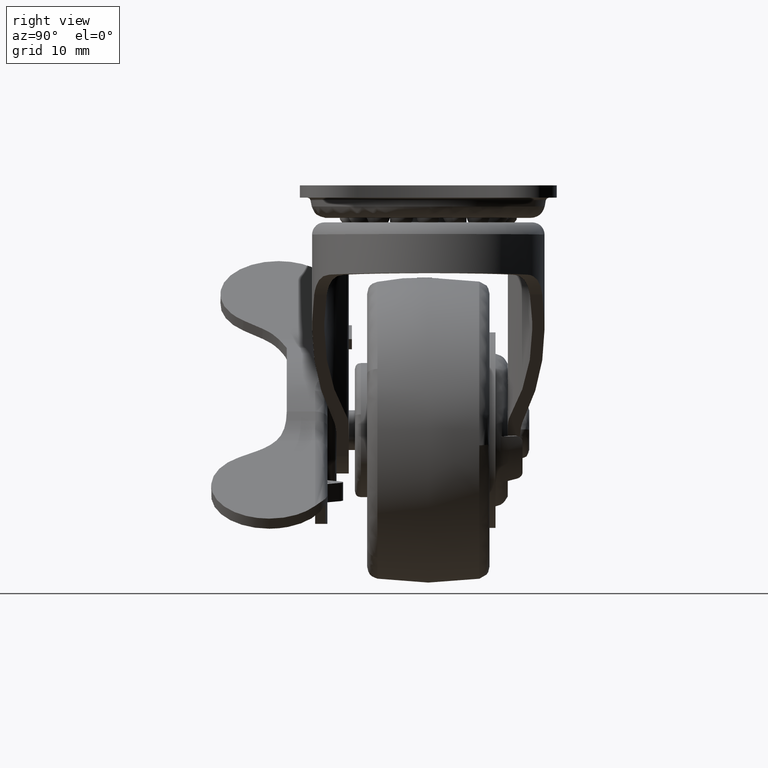
[diagram: clean part render]
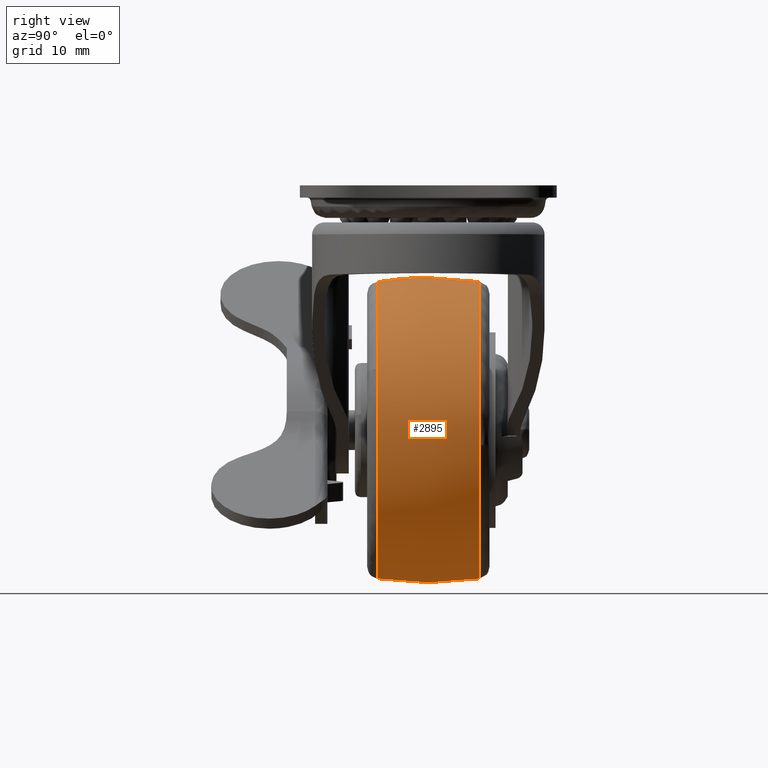
[diagram: same view with one face highlighted and labeled with its STEP entity id]
A machine part, right view. The second image highlights one B-rep face of the part: STEP entity #2895.
In plain terms, the highlighted face is a freeform B-spline surface patch.
Its self-contained STEP definition (entity closure, byte-faithful):
#2372=CARTESIAN_POINT('',(6.694257919901358,-8.333334659224246,-23.360420628443421));
#2373=VERTEX_POINT('',#2372);
#2384=CARTESIAN_POINT('',(23.977126034137669,-8.333324548178545,3.952191505943502));
#2385=VERTEX_POINT('',#2384);
#2386=CARTESIAN_POINT('',(6.694257919901358,-8.333334659224246,-23.360420628443421));
#2387=CARTESIAN_POINT('',(8.376217144736090,-8.333334483497174,-22.878751980764619));
#2388=CARTESIAN_POINT('',(11.120519588692920,-8.333334072963551,-21.759467930160401));
#2389=CARTESIAN_POINT('',(14.737640063729691,-8.333333220684587,-19.446317190296831));
#2390=CARTESIAN_POINT('',(17.503258220461628,-8.333332315399517,-16.994745120999308));
#2391=CARTESIAN_POINT('',(19.830114738894491,-8.333331277102023,-14.187238202741890));
#2392=CARTESIAN_POINT('',(21.494653034936679,-8.333330271836182,-11.472020607011190));
#2393=CARTESIAN_POINT('',(22.806190744530522,-8.333329197828277,-8.573490779741791));
#2394=CARTESIAN_POINT('',(23.787942865615769,-8.333328020530162,-5.398506018519986));
#2395=CARTESIAN_POINT('',(24.433641128548871,-8.333326427276740,-1.105208132619276));
#2396=CARTESIAN_POINT('',(24.284519931068768,-8.333325240460852,2.089688546944770));
#2397=CARTESIAN_POINT('',(23.977126034137669,-8.333324548178545,3.952191505943502));
#2398=B_SPLINE_CURVE_WITH_KNOTS('',3,(#2386,#2387,#2388,#2389,#2390,#2391,#2392,#2393,#2394,#2395,#2396,#2397),.UNSPECIFIED.,.F.,.U.,(4,1,1,1,1,1,1,1,1,4),(0.000000064456650,5.248627621696471,8.839828561252695,12.845377479156690,16.298443835512629,19.751485523214651,22.375793984493399,25.828872734242921,29.696317226690120,35.359313656390569),.UNSPECIFIED.);
#2399=EDGE_CURVE('',#2373,#2385,#2398,.T.);
#2513=CARTESIAN_POINT('',(0.0,-8.333316665074666,24.300667676607080));
#2514=VERTEX_POINT('',#2513);
#2515=CARTESIAN_POINT('',(23.977126034137669,-8.333324548178545,3.952191505943502));
#2516=CARTESIAN_POINT('',(23.658948622004800,-8.333323811748263,5.885706298156643));
#2517=CARTESIAN_POINT('',(22.739539306916321,-8.333322612071482,9.028685014151060));
#2518=CARTESIAN_POINT('',(20.635940245687781,-8.333321082352422,13.020536471936490));
#2519=CARTESIAN_POINT('',(18.657608056951471,-8.333320063939183,15.668320741268859));
#2520=CARTESIAN_POINT('',(16.619058749751840,-8.333319244915092,17.790122981248739));
#2521=CARTESIAN_POINT('',(14.471428599244399,-8.333318542649764,19.602667286641029));
#2522=CARTESIAN_POINT('',(11.998277237312770,-8.333317918630506,21.203681942954908));
#2523=CARTESIAN_POINT('',(9.107846413844319,-8.333317368594463,22.602834971764661));
#2524=CARTESIAN_POINT('',(5.210173469318502,-8.333316850179189,23.901656800484780));
#2525=CARTESIAN_POINT('',(2.004056777354083,-8.333316677768396,24.301226920424430));
#2526=CARTESIAN_POINT('',(0.0,-8.333316665074666,24.300667676607080));
#2527=B_SPLINE_CURVE_WITH_KNOTS('',3,(#2515,#2516,#2517,#2518,#2519,#2520,#2521,#2522,#2523,#2524,#2525,#2526),.UNSPECIFIED.,.F.,.U.,(4,1,1,1,1,1,1,1,1,4),(0.000000058399166,5.878396454092627,9.752810146939900,13.493612663535190,15.764815979274180,18.570369609744031,21.910406002991181,24.582405766219779,28.189619677754880,34.201616375629627),.UNSPECIFIED.);
#2528=EDGE_CURVE('',#2385,#2514,#2527,.T.);
#2530=CARTESIAN_POINT('',(-24.138137160452619,-8.333331455629740,2.805826517292569));
#2531=VERTEX_POINT('',#2530);
#2548=CARTESIAN_POINT('',(0.0,-8.333334859047270,-24.300664601270750));
#2549=VERTEX_POINT('',#2548);
#2550=CARTESIAN_POINT('',(-24.138137160452619,-8.333331455629740,2.805826517292569));
#2551=CARTESIAN_POINT('',(-24.304652242716969,-8.333331545467127,1.374654246760641));
#2552=CARTESIAN_POINT('',(-24.367515914245541,-8.333331706562914,-0.981798275595051));
#2553=CARTESIAN_POINT('',(-23.976901402703689,-8.333331961356805,-4.272454986089161));
#2554=CARTESIAN_POINT('',(-23.358570410731200,-8.333332182013971,-6.872854816449393));
#2555=CARTESIAN_POINT('',(-22.390606562498359,-8.333332432706653,-9.590819500198627));
#2556=CARTESIAN_POINT('',(-21.225266626433161,-8.333332669784632,-11.938603072443380));
#2557=CARTESIAN_POINT('',(-19.720058524547468,-8.333332927106191,-14.272818360847600));
#2558=CARTESIAN_POINT('',(-17.682939338767259,-8.333333232452993,-16.819175021988169));
#2559=CARTESIAN_POINT('',(-14.984821473058540,-8.333333572475297,-19.272099254169660));
#2560=CARTESIAN_POINT('',(-11.974148222275311,-8.333333896278196,-21.215058646687758));
#2561=CARTESIAN_POINT('',(-9.088326413655013,-8.333334174172784,-22.613647246054420));
#2562=CARTESIAN_POINT('',(-5.176088532827952,-8.333334508787392,-23.908159757879972));
#2563=CARTESIAN_POINT('',(-1.974515688205885,-8.333334735955877,-24.301201347102580));
#2564=CARTESIAN_POINT('',(0.0,-8.333334859047270,-24.300664601270750));
#2565=B_SPLINE_CURVE_WITH_KNOTS('',3,(#2550,#2551,#2552,#2553,#2554,#2555,#2556,#2557,#2558,#2559,#2560,#2561,#2562,#2563,#2564),.UNSPECIFIED.,.F.,.U.,(4,1,1,1,1,1,1,1,1,1,1,1,4),(0.000000081090988,4.322451191316318,7.044039719624024,9.925706763834995,12.327100541006310,15.689027820653420,17.770226535654150,20.651830765813891,25.454608214749179,28.656472640276760,31.378046718546081,35.060177183453987,40.983567741001082),.UNSPECIFIED.);
#2566=EDGE_CURVE('',#2531,#2549,#2565,.T.);
#2568=CARTESIAN_POINT('',(0.0,-8.333334859047270,-24.300664601270750));
#2569=CARTESIAN_POINT('',(2.260720899362077,-8.333334859167374,-24.301229760847079));
#2570=CARTESIAN_POINT('',(4.521147968865813,-8.333334791669897,-23.983628206997231));
#2571=CARTESIAN_POINT('',(6.694257919901358,-8.333334659224246,-23.360420628443421));
#2572=B_SPLINE_CURVE_WITH_KNOTS('',3,(#2568,#2569,#2570,#2571),.UNSPECIFIED.,.F.,.U.,(4,4),(1.555310E-009,6.781976443349644),.UNSPECIFIED.);
#2573=EDGE_CURVE('',#2549,#2373,#2572,.T.);
#2608=CARTESIAN_POINT('',(22.709083047449781,8.333331445738839,-8.649852680571042));
#2609=VERTEX_POINT('',#2608);
#2610=CARTESIAN_POINT('',(0.0,8.333327410047160,24.300666727982382));
#2611=VERTEX_POINT('',#2610);
#2612=CARTESIAN_POINT('',(22.709083047449781,8.333331445738839,-8.649852680571042));
#2613=CARTESIAN_POINT('',(23.166767476545299,8.333331297689790,-7.448521945584016));
#2614=CARTESIAN_POINT('',(23.856257258652821,8.333331007285842,-5.090861856597387));
#2615=CARTESIAN_POINT('',(24.346218455043928,8.333330558133945,-1.441068381170188));
#2616=CARTESIAN_POINT('',(24.292365024274869,8.333330082608196,2.426346638715271));
#2617=CARTESIAN_POINT('',(23.598202293446239,8.333329614613435,6.236215563639821));
#2618=CARTESIAN_POINT('',(22.216422753305530,8.333329139331127,10.109323560871671));
#2619=CARTESIAN_POINT('',(20.312456550697782,8.333328717352883,13.551957230619131));
#2620=CARTESIAN_POINT('',(18.124373226028862,8.333328382936003,16.284171981422610));
#2621=CARTESIAN_POINT('',(15.926502095575399,8.333328121979234,18.419036475266100));
#2622=CARTESIAN_POINT('',(13.893145201810141,8.333327928859291,20.001290349263549));
#2623=CARTESIAN_POINT('',(10.911023607452551,8.333327707165815,21.821383955732781));
#2624=CARTESIAN_POINT('',(7.675942484895749,8.333327542790071,23.176823924347570));
#2625=CARTESIAN_POINT('',(3.734229143517279,8.333327431869277,24.101630150026580));
#2626=CARTESIAN_POINT('',(1.346794604313989,8.333327409077038,24.300775630016371));
#2627=CARTESIAN_POINT('',(0.0,8.333327410047160,24.300666727982382));
#2628=B_SPLINE_CURVE_WITH_KNOTS('',3,(#2612,#2613,#2614,#2615,#2616,#2617,#2618,#2619,#2620,#2621,#2622,#2623,#2624,#2625,#2626,#2627),.UNSPECIFIED.,.F.,.U.,(4,1,1,1,1,1,1,1,1,1,1,1,1,4),(0.000000086616488,3.856679224792657,7.346114597893426,11.019208907203900,15.426907793644320,18.916339032872159,23.324031047617730,27.180695308514348,29.384527550282652,32.506666746104599,34.894164003331262,39.852835493748749,42.974919464386630,47.015294931142947),.UNSPECIFIED.);
#2629=EDGE_CURVE('',#2609,#2611,#2628,.T.);
#2736=CARTESIAN_POINT('',(0.0,8.333333321451740,-24.300666596374899));
#2737=VERTEX_POINT('',#2736);
#2738=CARTESIAN_POINT('',(0.0,8.333333321451740,-24.300666596374899));
#2739=CARTESIAN_POINT('',(1.374734509128933,8.333333321466117,-24.300786539576048));
#2740=CARTESIAN_POINT('',(3.818660523271896,8.333333296527096,-24.092697182327449));
#2741=CARTESIAN_POINT('',(7.093317241161781,8.333333202265481,-23.306185075007889));
#2742=CARTESIAN_POINT('',(10.102162705875481,8.333333067240414,-22.179545294737469));
#2743=CARTESIAN_POINT('',(12.872469585474770,8.333332890024403,-20.700867953826990));
#2744=CARTESIAN_POINT('',(15.660823239678271,8.333332647902852,-18.680622826045749));
#2745=CARTESIAN_POINT('',(17.707634374922769,8.333332413007057,-16.720669340615821));
#2746=CARTESIAN_POINT('',(19.662889829002900,8.333332131348357,-14.370529231259599));
#2747=CARTESIAN_POINT('',(21.301835977134029,8.333331832055931,-11.873254898908460));
#2748=CARTESIAN_POINT('',(22.301344683104301,8.333331574046694,-9.720444171492108));
#2749=CARTESIAN_POINT('',(22.709083047449781,8.333331445738839,-8.649852680571042));
#2750=B_SPLINE_CURVE_WITH_KNOTS('',3,(#2738,#2739,#2740,#2741,#2742,#2743,#2744,#2745,#2746,#2747,#2748,#2749),.UNSPECIFIED.,.F.,.U.,(4,1,1,1,1,1,1,1,1,4),(5.179960E-009,4.124194755286165,7.331930592903042,10.081414085375091,13.747369880896700,16.725959438529500,20.391922734681010,22.224915285020518,25.890890410493700,29.327721459707050),.UNSPECIFIED.);
#2751=EDGE_CURVE('',#2737,#2609,#2750,.T.);
#2753=CARTESIAN_POINT('',(-24.138136264636419,8.333341831794670,2.805826547892443));
#2754=VERTEX_POINT('',#2753);
#2755=CARTESIAN_POINT('',(-24.138136264636419,8.333341831794670,2.805826547892443));
#2756=CARTESIAN_POINT('',(-24.329400427810430,8.333341573885321,1.162624389624436));
#2757=CARTESIAN_POINT('',(-24.365474304884820,8.333341109903167,-1.519233661189011));
#2758=CARTESIAN_POINT('',(-23.858376831591009,8.333340447707776,-4.849368701195713));
#2759=CARTESIAN_POINT('',(-23.113134584728140,8.333339833918441,-7.690997397249443));
#2760=CARTESIAN_POINT('',(-22.034809737150201,8.333339186195103,-10.429810641661030));
#2761=CARTESIAN_POINT('',(-20.249012763444391,8.333338353160672,-13.596909530545689));
#2762=CARTESIAN_POINT('',(-18.241622530576141,8.333337588784724,-16.174583351005250));
#2763=CARTESIAN_POINT('',(-15.558209037187870,8.333336714007679,-18.780746627710961));
#2764=CARTESIAN_POINT('',(-12.735068596515910,8.333335916480364,-20.821323163700409));
#2765=CARTESIAN_POINT('',(-9.243740507425436,8.333335065808996,-22.570380750051559));
#2766=CARTESIAN_POINT('',(-5.122754404718448,8.333334187083256,-23.918947191565699));
#2767=CARTESIAN_POINT('',(-1.921131626762664,8.333333620941778,-24.301076327806520));
#2768=CARTESIAN_POINT('',(0.0,8.333333321451740,-24.300666596374899));
#2769=B_SPLINE_CURVE_WITH_KNOTS('',3,(#2755,#2756,#2757,#2758,#2759,#2760,#2761,#2762,#2763,#2764,#2765,#2766,#2767,#2768),.UNSPECIFIED.,.F.,.U.,(4,1,1,1,1,1,1,1,1,1,1,4),(0.000000081084849,4.962829967799067,8.004593381816619,10.085800777954891,13.767931731457541,16.809685012943611,20.972038953002379,23.533500426741892,28.016096832386850,31.378047944134568,35.220281022796293,40.983569341768472),.UNSPECIFIED.);
#2770=EDGE_CURVE('',#2754,#2737,#2769,.T.);
#2817=CARTESIAN_POINT('',(-23.989887930900579,-9.172665099015738,2.788624654857887));
#2818=CARTESIAN_POINT('',(-24.832791040827107,-4.625584272787275,2.886605120659474));
#2819=CARTESIAN_POINT('',(-24.832791040827100,0.0,2.886605120659473));
#2820=CARTESIAN_POINT('',(-24.832791040827097,4.625588967508471,2.886605120659473));
#2821=CARTESIAN_POINT('',(-23.989886234415614,9.172674250779705,2.788624457655641));
#2822=CARTESIAN_POINT('',(-24.151421291568965,-9.172665099015736,1.398990803351360));
#2823=CARTESIAN_POINT('',(-24.999999999999989,-4.625584272787275,1.448145418091538));
#2824=CARTESIAN_POINT('',(-25.0,0.0,1.448145418091539));
#2825=CARTESIAN_POINT('',(-25.000000000000004,4.625588967508470,1.448145418091539));
#2826=CARTESIAN_POINT('',(-24.151419583660886,9.172674250779702,1.398990704419391));
#2827=CARTESIAN_POINT('',(-24.151421291568958,-9.172665099015733,0.0));
#2828=CARTESIAN_POINT('',(-24.999999999999993,-4.625584272787275,0.0));
#2829=CARTESIAN_POINT('',(-25.0,0.0,0.0));
#2830=CARTESIAN_POINT('',(-25.0,4.625588967508470,0.0));
#2831=CARTESIAN_POINT('',(-24.151419583660886,9.172674250779703,0.0));
#2832=CARTESIAN_POINT('',(-24.151421291568955,-9.172665099015738,-24.151421291568955));
#2833=CARTESIAN_POINT('',(-24.999999999999993,-4.625584272787276,-24.999999999999993));
#2834=CARTESIAN_POINT('',(-25.0,0.0,-25.0));
#2835=CARTESIAN_POINT('',(-25.000000000000007,4.625588967508471,-25.000000000000007));
#2836=CARTESIAN_POINT('',(-24.151419583660886,9.172674250779703,-24.151419583660886));
#2837=CARTESIAN_POINT('',(0.0,-9.172665099015733,-24.151421291568958));
#2838=CARTESIAN_POINT('',(0.0,-4.625584272787275,-24.999999999999993));
#2839=CARTESIAN_POINT('',(0.0,0.0,-25.0));
#2840=CARTESIAN_POINT('',(0.0,4.625588967508470,-25.0));
#2841=CARTESIAN_POINT('',(0.0,9.172674250779703,-24.151419583660886));
#2842=CARTESIAN_POINT('',(24.151421291568955,-9.172665099015738,-24.151421291568955));
#2843=CARTESIAN_POINT('',(24.999999999999993,-4.625584272787276,-24.999999999999993));
#2844=CARTESIAN_POINT('',(25.0,0.0,-25.0));
#2845=CARTESIAN_POINT('',(25.000000000000007,4.625588967508471,-25.000000000000007));
#2846=CARTESIAN_POINT('',(24.151419583660886,9.172674250779703,-24.151419583660886));
#2847=CARTESIAN_POINT('',(24.151421291568958,-9.172665099015733,0.0));
#2848=CARTESIAN_POINT('',(24.999999999999993,-4.625584272787275,0.0));
#2849=CARTESIAN_POINT('',(25.0,0.0,0.0));
#2850=CARTESIAN_POINT('',(25.0,4.625588967508470,0.0));
#2851=CARTESIAN_POINT('',(24.151419583660886,9.172674250779703,0.0));
#2852=CARTESIAN_POINT('',(24.151421291568955,-9.172665099015738,24.151421291568955));
#2853=CARTESIAN_POINT('',(24.999999999999993,-4.625584272787276,24.999999999999993));
#2854=CARTESIAN_POINT('',(25.0,0.0,25.0));
#2855=CARTESIAN_POINT('',(25.000000000000007,4.625588967508471,25.000000000000007));
#2856=CARTESIAN_POINT('',(24.151419583660886,9.172674250779703,24.151419583660886));
#2857=CARTESIAN_POINT('',(0.0,-9.172665099015733,24.151421291568958));
#2858=CARTESIAN_POINT('',(0.0,-4.625584272787275,24.999999999999993));
#2859=CARTESIAN_POINT('',(0.0,0.0,25.0));
#2860=CARTESIAN_POINT('',(0.0,4.625588967508470,25.0));
#2861=CARTESIAN_POINT('',(0.0,9.172674250779703,24.151419583660886));
#2869=(BOUNDED_SURFACE()B_SPLINE_SURFACE(2,2,((#2817,#2822,#2827,#2832,#2837,#2842,#2847,#2852,#2857),(#2818,#2823,#2828,#2833,#2838,#2843,#2848,#2853,#2858),(#2819,#2824,#2829,#2834,#2839,#2844,#2849,#2854,#2859),(#2820,#2825,#2830,#2835,#2840,#2845,#2850,#2855,#2860),(#2821,#2826,#2831,#2836,#2841,#2846,#2851,#2856,#2861)),.UNSPECIFIED.,.F.,.F.,.U.)B_SPLINE_SURFACE_WITH_KNOTS((3,2,3),(3,2,2,2,3),(0.0,9.400041378284977,18.800092066335608),(0.0,3.313707807691297,44.735064045000797,86.156420282310307,127.577776519619800),.UNSPECIFIED.)GEOMETRIC_REPRESENTATION_ITEM()RATIONAL_B_SPLINE_SURFACE(((0.918952123553060,0.937854270901048,0.960356826373530,0.679074824287515,0.960356826373530,0.679074824287515,0.960356826373530,0.679074824287515,0.960356826373530),(0.933740172191261,0.952946498469995,0.975811171702784,0.690002696668629,0.975811171702784,0.690002696668629,0.975811171702784,0.690002696668629,0.975811171702784),(0.956886126402807,0.976568547383107,1.0,0.707106781186548,1.0,0.707106781186548,1.0,0.707106781186548,1.0),(0.933740149267596,0.952946475074807,0.975811147746259,0.690002679728808,0.975811147746259,0.690002679728808,0.975811147746259,0.690002679728808,0.975811147746259),(0.918952094261013,0.937854241006486,0.960356795761687,0.679074802641673,0.960356795761687,0.679074802641673,0.960356795761687,0.679074802641673,0.960356795761687)))REPRESENTATION_ITEM('')SURFACE());
#2870=ORIENTED_EDGE('',*,*,#2566,.F.);
#2871=CARTESIAN_POINT('',(-24.138137160452619,-8.333331455629740,2.805826517292569));
#2872=CARTESIAN_POINT('',(-24.528038321418471,-6.011539008766376,2.851149308197574));
#2873=CARTESIAN_POINT('',(-25.065199423017049,-0.442171878336198,2.913589870574646));
#2874=CARTESIAN_POINT('',(-24.672747306278819,5.151644966881848,2.867970616233488));
#2875=CARTESIAN_POINT('',(-24.138136264636419,8.333341831794670,2.805826547892443));
#2876=B_SPLINE_CURVE_WITH_KNOTS('',3,(#2871,#2872,#2873,#2874,#2875),.UNSPECIFIED.,.F.,.U.,(4,1,4),(2.477627E-009,7.064229494844755,16.744833738048580),.UNSPECIFIED.);
#2877=EDGE_CURVE('',#2531,#2754,#2876,.T.);
#2878=ORIENTED_EDGE('',*,*,#2877,.T.);
#2879=ORIENTED_EDGE('',*,*,#2770,.T.);
#2880=ORIENTED_EDGE('',*,*,#2751,.T.);
#2881=ORIENTED_EDGE('',*,*,#2629,.T.);
#2882=CARTESIAN_POINT('',(0.0,-8.333316665074666,24.300667676607080));
#2883=CARTESIAN_POINT('',(0.0,-5.151625185497363,24.838876993757150));
#2884=CARTESIAN_POINT('',(0.0,0.442181537339980,25.233966857622349));
#2885=CARTESIAN_POINT('',(0.0,6.011539078713260,24.693192432177199));
#2886=CARTESIAN_POINT('',(0.0,8.333327410047160,24.300666727982382));
#2887=B_SPLINE_CURVE_WITH_KNOTS('',3,(#2882,#2883,#2884,#2885,#2886),.UNSPECIFIED.,.F.,.U.,(4,1,4),(2.477474E-009,9.680587061242415,16.744804013583110),.UNSPECIFIED.);
#2888=EDGE_CURVE('',#2514,#2611,#2887,.T.);
#2889=ORIENTED_EDGE('',*,*,#2888,.F.);
#2890=ORIENTED_EDGE('',*,*,#2528,.F.);
#2891=ORIENTED_EDGE('',*,*,#2399,.F.);
#2892=ORIENTED_EDGE('',*,*,#2573,.F.);
#2893=EDGE_LOOP('',(#2870,#2878,#2879,#2880,#2881,#2889,#2890,#2891,#2892));
#2894=FACE_OUTER_BOUND('',#2893,.T.);
#2895=ADVANCED_FACE('',(#2894),#2869,.T.);